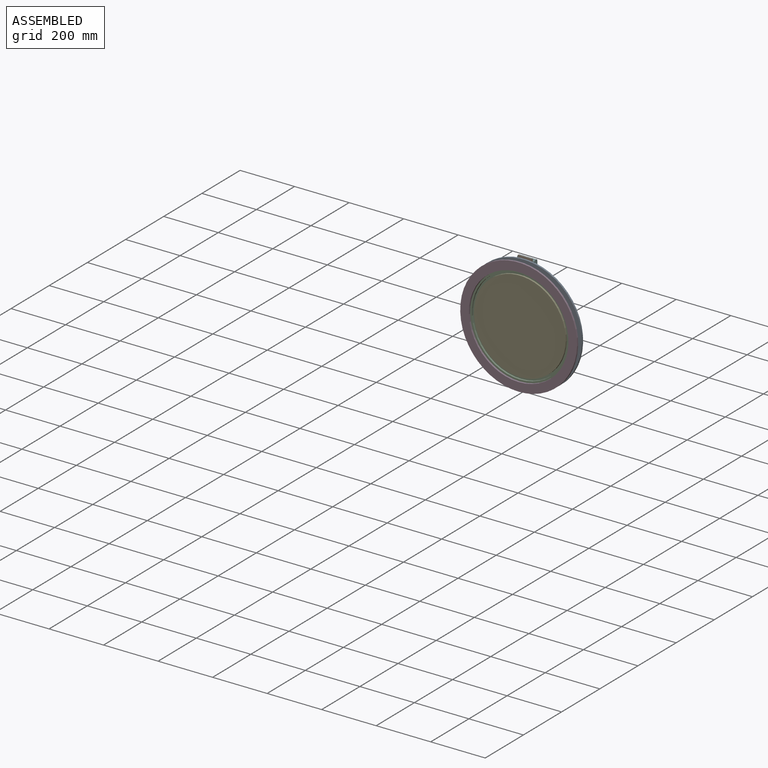
[diagram: assembled view]
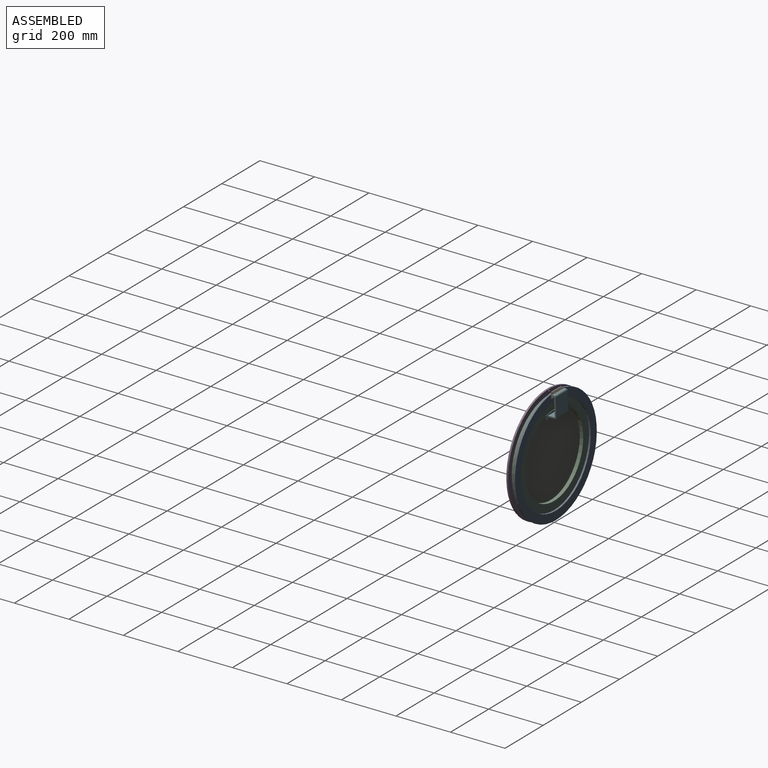
[diagram: assembled view, second angle]
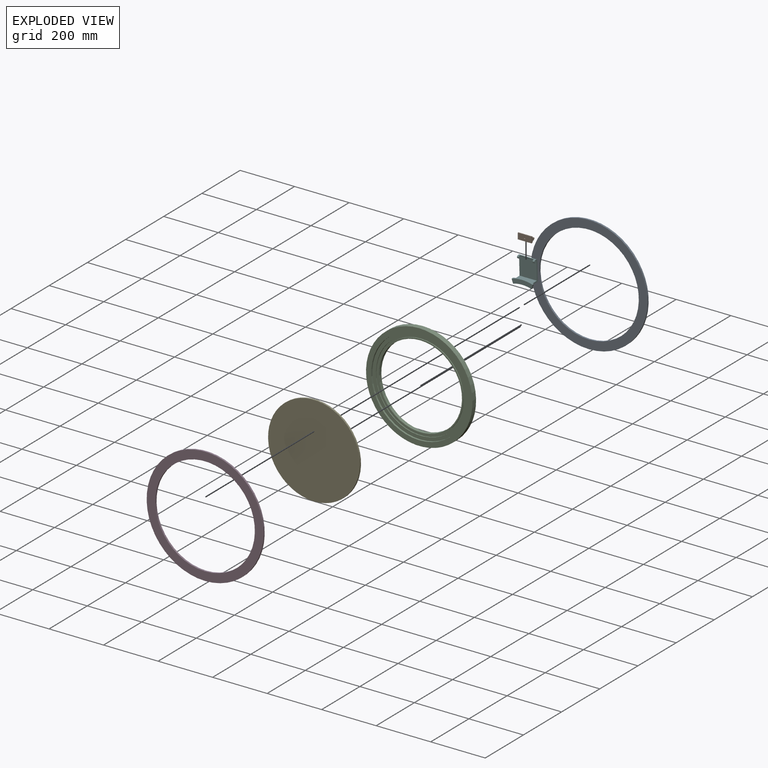
[diagram: exploded view]
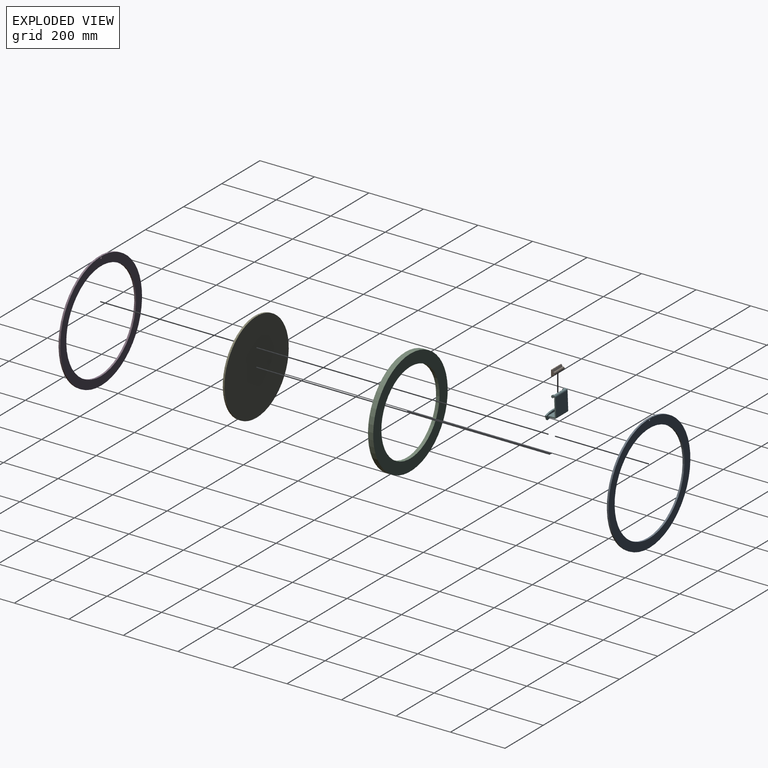
[diagram: exploded view, second angle]
ASSEMBLY  parts=6 mates=5
PART A: 6 faces, bbox 428.6x6.4x428.6 mm
  f0: cylinder r=182.56mm len=365.13mm, axis (0,1,0), area 7283.9mm2, adj f2,f3
  f1: cylinder r=214.31mm len=428.63mm, axis (0,1,0), area 8550.7mm2, adj f2,f3
  f2: plane 428.63x428.63mm, normal (0,-1,0), area 39586.5mm2, adj f0,f1
  f3: plane 428.63x428.63mm, normal (0,1,0), area 39554.9mm2, adj f0,f1,f4
  f4: cylinder r=3.17mm len=6.35mm, axis (0,1,0), area 63.3mm2, adj f3,f5
  f5: plane 6.35x6.35mm, normal (0,1,0), area 31.7mm2, adj f4
PART B: 11 faces, bbox 14.3x50.8x22.2 mm
  f0: plane 50.8x22.23mm, normal (-1,0,0), area 1097.4mm2, adj f1,f6,f7,f8,f9
  f1: plane 50.8x3.18mm, normal (0,0,-1), area 161.3mm2, adj f0,f2,f7,f8
  f2: plane 50.8x6.98mm, normal (0.87,0,-0.5), area 408.2mm2, adj f1,f3,f7,f8
  f3: cylinder r=4.76mm len=50.8mm, axis (0,1,0), area 1011.3mm2, adj f2,f4,f7,f8
  f4: plane 50.8x6.98mm, normal (0.87,0,0.5), area 408.2mm2, adj f3,f6,f7,f8
  f5: cylinder r=1.59mm len=50.8mm, axis (0,1,0), area 506.7mm2, adj f7,f8
  f6: plane 50.8x3.18mm, normal (0,0,1), area 161.3mm2, adj f0,f4,f7,f8
  f7: plane 22.23x14.29mm, normal (0,-1,0), area 180.6mm2, adj f0,f1,f2,f3,f4,f5,f6
  f8: plane 22.23x14.29mm, normal (0,1,0), area 180.6mm2, adj f0,f1,f2,f3,f4,f5,f6
  f9: cylinder r=3.17mm len=6.35mm, axis (-1,0,0), area 63.3mm2, adj f0,f10
  f10: plane 6.35x6.35mm, normal (-1,0,0), area 31.7mm2, adj f9
PART C: 10 faces, bbox 390.5x19.1x390.5 mm
  f0: plane 390.53x390.53mm, normal (0,-1,0), area 22231.8mm2, adj f1,f9
  f1: cylinder r=176.21mm len=352.43mm, axis (0,1,0), area 7030.6mm2, adj f0,f2
  f2: plane 352.43x352.43mm, normal (0,-1,0), area 13554.4mm2, adj f1,f3
  f3: cylinder r=163.51mm len=327.03mm, axis (0,1,0), area 3261.9mm2, adj f2,f4
  f4: plane 327.03x327.03mm, normal (0,-1,0), area 6397.2mm2, adj f3,f5
  f5: cylinder r=157.16mm len=314.33mm, axis (0,1,0), area 3135.3mm2, adj f4,f6
  f6: plane 314.33x314.33mm, normal (0,-1,0), area 4631.6mm2, adj f5,f7
  f7: cylinder r=152.4mm len=304.8mm, axis (0,1,0), area 12161mm2, adj f6,f8
  f8: plane 390.53x390.53mm, normal (0,1,0), area 46815mm2, adj f7,f9
  f9: cylinder r=195.26mm len=390.53mm, axis (0,1,0), area 23371.9mm2, adj f0,f8
PART D: same geometry as A
PART E: 3 faces, bbox 336.6x6.4x336.6 mm
  f0: cylinder r=168.28mm len=336.55mm, axis (0,1,0), area 6713.9mm2, adj f1,f2
  f1: plane 336.55x336.55mm, normal (0,-1,0), area 88958.8mm2, adj f0
  f2: plane 336.55x336.55mm, normal (0,1,0), area 88958.8mm2, adj f0
PART F: 23 faces, bbox 36.5x77.2x85.5 mm
  f0: plane 63.5x6.03mm, normal (0,0,1), area 271.4mm2, adj f1,f6,f7,f8,f18,f19,f20,f22
  f1: cylinder r=4.76mm len=9.53mm, axis (0,1,0), area 142.5mm2, adj f0,f2,f7,f19
  f2: plane 63.5x1.59mm, normal (0,0,-1), area 76.3mm2, adj f1,f6,f7,f8,f9,f18,f19,f20
  f3: cylinder r=1.59mm len=6.35mm, axis (0,1,0), area 63.3mm2, adj f7,f19
  f4: plane 63.5x25.4mm, normal (0,0,1), area 1612.9mm2, adj f6,f7,f9,f16
  f5: plane 63.5x25.08mm, normal (0,0,-1), area 1592.7mm2, adj f6,f7,f16,f21
  f6: plane 76.2x30.16mm, normal (0,-1,0), area 548.6mm2, adj f0,f2,f4,f5,f8,f9,f10,f11
  f7: plane 76.2x30.16mm, normal (0,1,0), area 548.6mm2, adj f0,f1,f2,f3,f4,f5,f9,f11
  f8: cylinder r=4.76mm len=9.53mm, axis (0,1,0), area 142.5mm2, adj f0,f2,f6,f20
  f9: plane 66.68x63.5mm, normal (-1,0,0), area 4233.9mm2, adj f2,f4,f6,f7
  f10: cylinder r=1.59mm len=6.35mm, axis (0,1,0), area 63.3mm2, adj f6,f20
  f11: plane 66.04x63.5mm, normal (1,0,0), area 4193.5mm2, adj f6,f7,f21,f22
  f12: cylinder r=112.04mm len=67.39mm, axis (-1,0,0), area 434.6mm2, adj f13,f15,f16,f17
  f13: plane 15.5x6.35mm, normal (0,-0.95,-0.3), area 103.2mm2, adj f12,f14,f16,f17
  f14: cylinder r=128.29mm len=77.16mm, axis (-1,0,0), area 497.6mm2, adj f13,f15,f16,f17
  f15: plane 15.5x6.35mm, normal (0,0.95,-0.3), area 103.2mm2, adj f12,f14,f16,f17
  f16: plane 77.16x21.43mm, normal (1,0,0), area 890.2mm2, adj f4,f5,f6,f7,f12,f13,f14,f15
  f17: plane 77.16x21.43mm, normal (-1,0,0), area 1192.6mm2, adj f12,f13,f14,f15
  f18: cylinder r=5.25mm len=50.8mm, axis (0,-1,0), area 303.3mm2, adj f0,f2,f19,f20
  f19: plane 10.01x9.53mm, normal (0,-1,0), area 66.4mm2, adj f0,f1,f2,f3,f18
  f20: plane 10.01x9.53mm, normal (0,1,0), area 66.4mm2, adj f0,f2,f8,f10,f18
  f21: cylinder r=5.08mm len=63.5mm, axis (0,1,0), area 506.7mm2, adj f5,f6,f7,f11
  f22: cylinder r=5.08mm len=63.5mm, axis (0,1,0), area 506.7mm2, adj f0,f6,f7,f11
PLACE A t=(0,6.35,0)mm
PLACE B rot(axis=(0.71,0.71,0),180deg) t=(0,15.88,209.55)mm
PLACE C at identity fixed
PLACE D t=(0,-19.05,0)mm
PLACE E t=(0,-12.7,0)mm
PLACE F rot(axis=(0.02,-0.02,1),90deg) t=(0,15.87,209.55)mm
MATE fastened E.f0 <-> C.f1  axis (0,1,0) through (0,-12.7,0)mm
MATE revolute F.f3 <-> B.f3  axis (1,0,0) through (-25.4,15.87,209.55)mm
MATE fastened B.f9 <-> A.f4  axis (0,-1,0) through (0,6.35,209.55)mm
MATE fastened D.f0 <-> C.f1  axis (0,1,0) through (0,-19.05,0)mm
MATE fastened A.f0 <-> C.f1  axis (0,-1,0) through (0,0,0)mm
